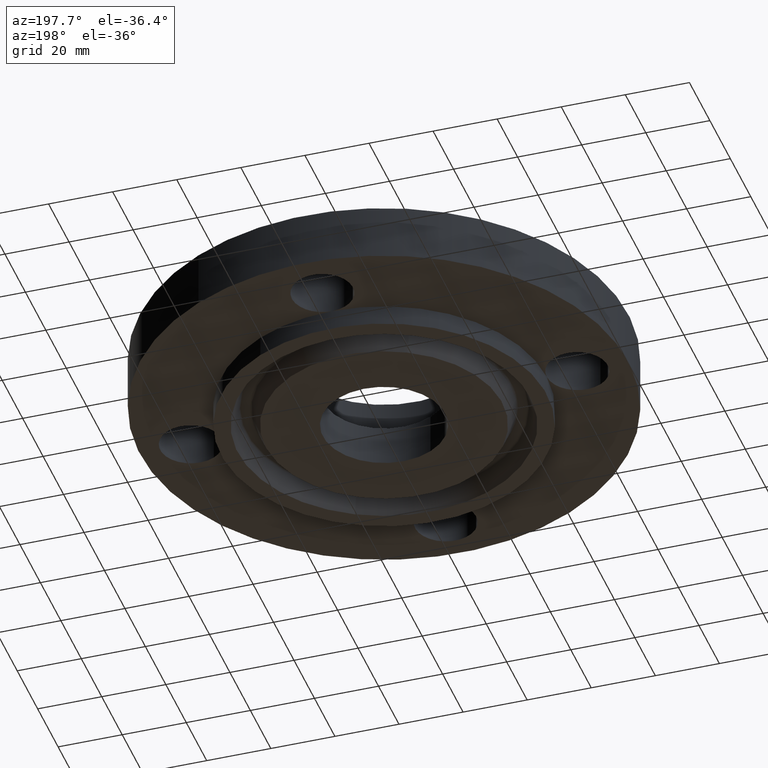
[diagram: clean part render]
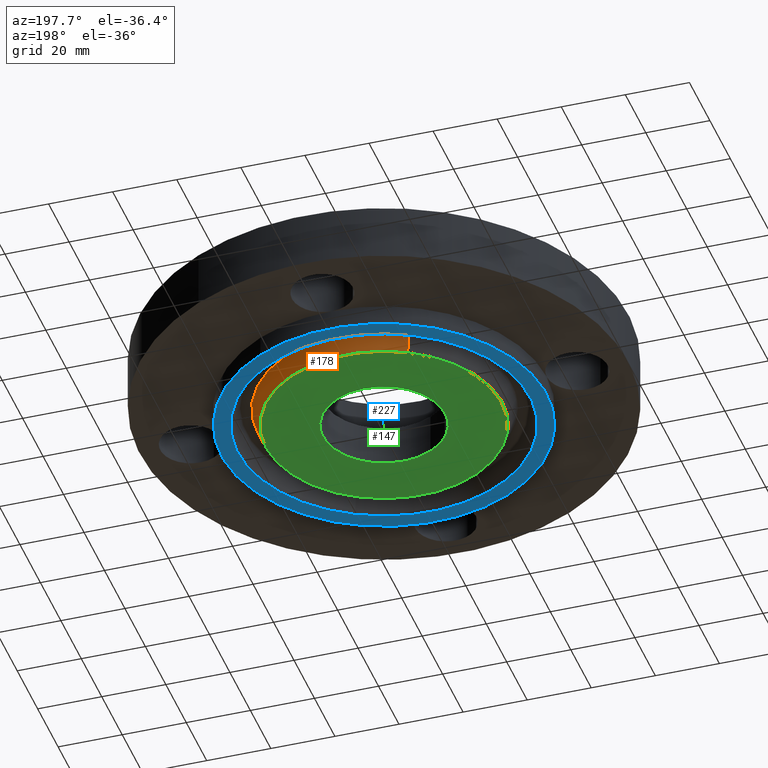
[diagram: same view with three faces highlighted in distinct colors, each labeled with its STEP entity id]
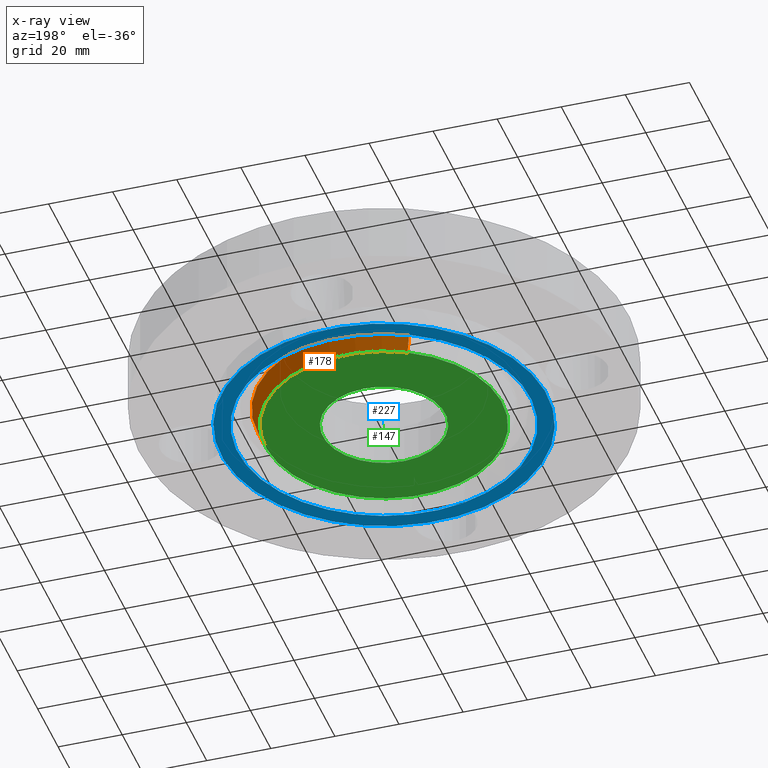
[diagram: x-ray of the same camera — body ghosted, the three highlighted faces saturated]
A machine part, auxiliary view with three faces highlighted in distinct colors.
The next image is the same camera in x-ray (body ghosted, the three faces saturated) — at least one of them is partly hidden behind the body in this view.
Their STEP definitions:

[orange] entity #178 — the highlighted conical surface has half-angle 23 deg.
#127=AXIS2_PLACEMENT_3D('Circle Axis2P3D',#125,#126,$) ;
#151=AXIS2_PLACEMENT_3D('Cone Axis2P3D',#148,#149,#150) ;
#162=AXIS2_PLACEMENT_3D('Circle Axis2P3D',#160,#161,$) ;
#125=CARTESIAN_POINT('Axis2P3D Location',(-2.79741234551E-016,2.79741234551E-016,-0.250000000001)) ;
#129=CARTESIAN_POINT('Vertex',(-0.696665235787,1.27523716025,-0.250000000001)) ;
#131=CARTESIAN_POINT('Vertex',(0.696665235787,-1.27523716025,-0.250000000001)) ;
#148=CARTESIAN_POINT('Axis2P3D Location',(0.,0.,-0.310000000001)) ;
#153=CARTESIAN_POINT('Line Origine',(-0.720165920875,1.31825487576,-0.134519826118)) ;
#157=CARTESIAN_POINT('Vertex',(-0.743666605962,1.36127259126,-0.0190396522348)) ;
#160=CARTESIAN_POINT('Axis2P3D Location',(0.,0.,-0.0190396522348)) ;
#164=CARTESIAN_POINT('Vertex',(0.743666605962,-1.36127259126,-0.0190396522348)) ;
#167=CARTESIAN_POINT('Line Origine',(0.720165920875,-1.31825487576,-0.134519826118)) ;
#126=DIRECTION('Axis2P3D Direction',(0.,0.,-0.0393700787402)) ;
#149=DIRECTION('Axis2P3D Direction',(0.,0.,0.0393700787402)) ;
#150=DIRECTION('Axis2P3D XDirection',(-0.0188750212049,0.0345504945626,0.)) ;
#154=DIRECTION('Vector Direction',(-0.00737505833565,0.0134999537303,0.0362403485611)) ;
#161=DIRECTION('Axis2P3D Direction',(0.,0.,0.0393700787402)) ;
#168=DIRECTION('Vector Direction',(0.00737505833565,-0.0134999537303,0.0362403485611)) ;
#155=VECTOR('Line Direction',#154,0.0393700787402) ;
#169=VECTOR('Line Direction',#168,0.0393700787402) ;
#173=ORIENTED_EDGE('',*,*,#159,.F.) ;
#174=ORIENTED_EDGE('',*,*,#166,.F.) ;
#175=ORIENTED_EDGE('',*,*,#171,.T.) ;
#176=ORIENTED_EDGE('',*,*,#133,.F.) ;
#178=ADVANCED_FACE('PartBody',(#177),#152,.T.) ;
#128=CIRCLE('generated circle',#127,1.45312500001) ;
#163=CIRCLE('generated circle',#162,1.55116185118) ;
#152=CONICAL_SURFACE('Cone',#151,1.42765651103,0.401425727959) ;
#133=EDGE_CURVE('',#130,#132,#128,.T.) ;
#159=EDGE_CURVE('',#158,#130,#156,.F.) ;
#166=EDGE_CURVE('',#165,#158,#163,.T.) ;
#171=EDGE_CURVE('',#165,#132,#170,.F.) ;
#172=EDGE_LOOP('',(#173,#174,#175,#176)) ;
#177=FACE_OUTER_BOUND('',#172,.T.) ;
#156=LINE('Line',#153,#155) ;
#170=LINE('Line',#167,#169) ;
#130=VERTEX_POINT('',#129) ;
#132=VERTEX_POINT('',#131) ;
#158=VERTEX_POINT('',#157) ;
#165=VERTEX_POINT('',#164) ;

[blue] entity #227 — the highlighted planar face has unit normal (0, 0, -1).
#123=AXIS2_PLACEMENT_3D('Plane Axis2P3D',#120,#121,#122) ;
#193=AXIS2_PLACEMENT_3D('Circle Axis2P3D',#191,#192,$) ;
#202=AXIS2_PLACEMENT_3D('Circle Axis2P3D',#200,#201,$) ;
#211=AXIS2_PLACEMENT_3D('Circle Axis2P3D',#209,#210,$) ;
#220=AXIS2_PLACEMENT_3D('Circle Axis2P3D',#218,#219,$) ;
#120=CARTESIAN_POINT('Axis2P3D Location',(0.,0.751500000003,-0.250000000001)) ;
#191=CARTESIAN_POINT('Axis2P3D Location',(0.,0.,-0.250000000001)) ;
#195=CARTESIAN_POINT('Vertex',(-0.958851077212,-1.75516512379,-0.250000000001)) ;
#197=CARTESIAN_POINT('Vertex',(0.958851077212,1.75516512379,-0.250000000001)) ;
#200=CARTESIAN_POINT('Axis2P3D Location',(0.,0.,-0.250000000001)) ;
#209=CARTESIAN_POINT('Axis2P3D Location',(-2.79741234551E-016,-6.99353086378E-016,-0.250000000001)) ;
#213=CARTESIAN_POINT('Vertex',(0.861467764683,-1.5769061659,-0.250000000001)) ;
#215=CARTESIAN_POINT('Vertex',(-0.861467764683,1.5769061659,-0.250000000001)) ;
#218=CARTESIAN_POINT('Axis2P3D Location',(-6.99353086378E-017,0.,-0.250000000001)) ;
#121=DIRECTION('Axis2P3D Direction',(0.,0.,-0.0393700787402)) ;
#122=DIRECTION('Axis2P3D XDirection',(0.0393700787402,0.,0.)) ;
#192=DIRECTION('Axis2P3D Direction',(0.,0.,-0.0393700787402)) ;
#201=DIRECTION('Axis2P3D Direction',(0.,0.,-0.0393700787402)) ;
#210=DIRECTION('Axis2P3D Direction',(0.,0.,-0.0393700787402)) ;
#219=DIRECTION('Axis2P3D Direction',(0.,0.,-0.0393700787402)) ;
#206=ORIENTED_EDGE('',*,*,#199,.T.) ;
#207=ORIENTED_EDGE('',*,*,#204,.T.) ;
#224=ORIENTED_EDGE('',*,*,#217,.F.) ;
#225=ORIENTED_EDGE('',*,*,#222,.F.) ;
#226=FACE_BOUND('',#223,.T.) ;
#227=ADVANCED_FACE('PartBody',(#208,#226),#124,.T.) ;
#194=CIRCLE('generated circle',#193,2.00000000001) ;
#203=CIRCLE('generated circle',#202,2.00000000001) ;
#212=CIRCLE('generated circle',#211,1.79687500001) ;
#221=CIRCLE('generated circle',#220,1.79687500001) ;
#199=EDGE_CURVE('',#196,#198,#194,.T.) ;
#204=EDGE_CURVE('',#198,#196,#203,.T.) ;
#217=EDGE_CURVE('',#214,#216,#212,.T.) ;
#222=EDGE_CURVE('',#216,#214,#221,.T.) ;
#205=EDGE_LOOP('',(#206,#207)) ;
#223=EDGE_LOOP('',(#224,#225)) ;
#208=FACE_OUTER_BOUND('',#205,.T.) ;
#124=PLANE('',#123) ;
#196=VERTEX_POINT('',#195) ;
#198=VERTEX_POINT('',#197) ;
#214=VERTEX_POINT('',#213) ;
#216=VERTEX_POINT('',#215) ;

[green] entity #147 — the highlighted planar face has unit normal (0, 0, -1).
#91=AXIS2_PLACEMENT_3D('Circle Axis2P3D',#89,#90,$) ;
#110=AXIS2_PLACEMENT_3D('Circle Axis2P3D',#108,#109,$) ;
#123=AXIS2_PLACEMENT_3D('Plane Axis2P3D',#120,#121,#122) ;
#127=AXIS2_PLACEMENT_3D('Circle Axis2P3D',#125,#126,$) ;
#136=AXIS2_PLACEMENT_3D('Circle Axis2P3D',#134,#135,$) ;
#86=CARTESIAN_POINT('Vertex',(0.360288292262,0.659503295263,-0.250000000001)) ;
#89=CARTESIAN_POINT('Axis2P3D Location',(0.,0.,-0.250000000001)) ;
#93=CARTESIAN_POINT('Vertex',(-0.360288292262,-0.659503295263,-0.250000000001)) ;
#108=CARTESIAN_POINT('Axis2P3D Location',(0.,0.,-0.250000000001)) ;
#120=CARTESIAN_POINT('Axis2P3D Location',(0.,0.751500000003,-0.250000000001)) ;
#125=CARTESIAN_POINT('Axis2P3D Location',(-2.79741234551E-016,2.79741234551E-016,-0.250000000001)) ;
#129=CARTESIAN_POINT('Vertex',(-0.696665235787,1.27523716025,-0.250000000001)) ;
#131=CARTESIAN_POINT('Vertex',(0.696665235787,-1.27523716025,-0.250000000001)) ;
#134=CARTESIAN_POINT('Axis2P3D Location',(2.79741234551E-016,0.,-0.250000000001)) ;
#90=DIRECTION('Axis2P3D Direction',(0.,0.,-0.0393700787402)) ;
#109=DIRECTION('Axis2P3D Direction',(0.,0.,-0.0393700787402)) ;
#121=DIRECTION('Axis2P3D Direction',(0.,0.,-0.0393700787402)) ;
#122=DIRECTION('Axis2P3D XDirection',(0.0393700787402,0.,0.)) ;
#126=DIRECTION('Axis2P3D Direction',(0.,0.,-0.0393700787402)) ;
#135=DIRECTION('Axis2P3D Direction',(0.,0.,-0.0393700787402)) ;
#140=ORIENTED_EDGE('',*,*,#133,.T.) ;
#141=ORIENTED_EDGE('',*,*,#138,.T.) ;
#144=ORIENTED_EDGE('',*,*,#95,.F.) ;
#145=ORIENTED_EDGE('',*,*,#112,.F.) ;
#146=FACE_BOUND('',#143,.T.) ;
#147=ADVANCED_FACE('PartBody',(#142,#146),#124,.T.) ;
#92=CIRCLE('generated circle',#91,0.751500000003) ;
#111=CIRCLE('generated circle',#110,0.751500000003) ;
#128=CIRCLE('generated circle',#127,1.45312500001) ;
#137=CIRCLE('generated circle',#136,1.45312500001) ;
#95=EDGE_CURVE('',#87,#94,#92,.T.) ;
#112=EDGE_CURVE('',#94,#87,#111,.T.) ;
#133=EDGE_CURVE('',#130,#132,#128,.T.) ;
#138=EDGE_CURVE('',#132,#130,#137,.T.) ;
#139=EDGE_LOOP('',(#140,#141)) ;
#143=EDGE_LOOP('',(#144,#145)) ;
#142=FACE_OUTER_BOUND('',#139,.T.) ;
#124=PLANE('',#123) ;
#87=VERTEX_POINT('',#86) ;
#94=VERTEX_POINT('',#93) ;
#130=VERTEX_POINT('',#129) ;
#132=VERTEX_POINT('',#131) ;